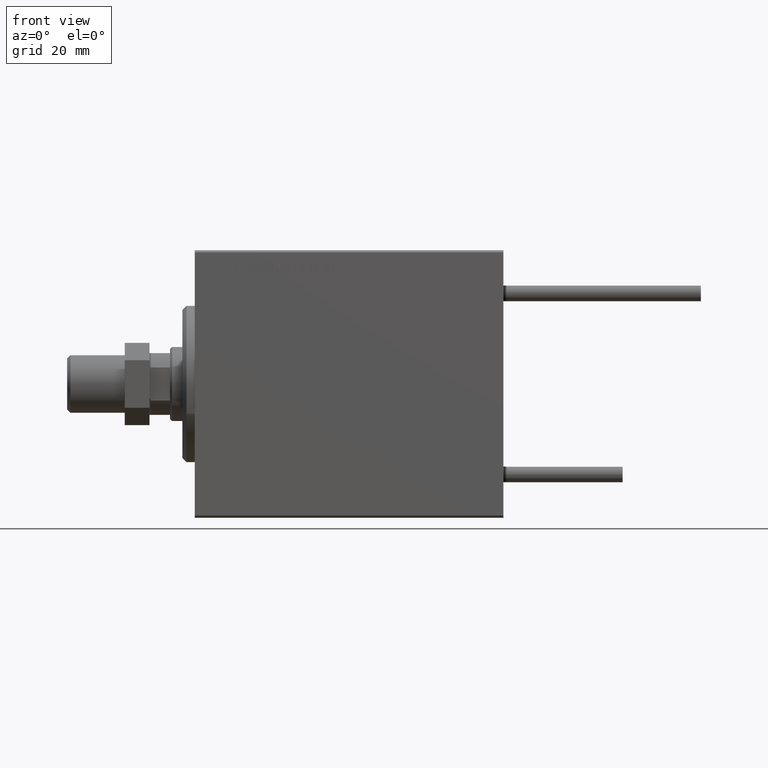
[diagram: clean part render]
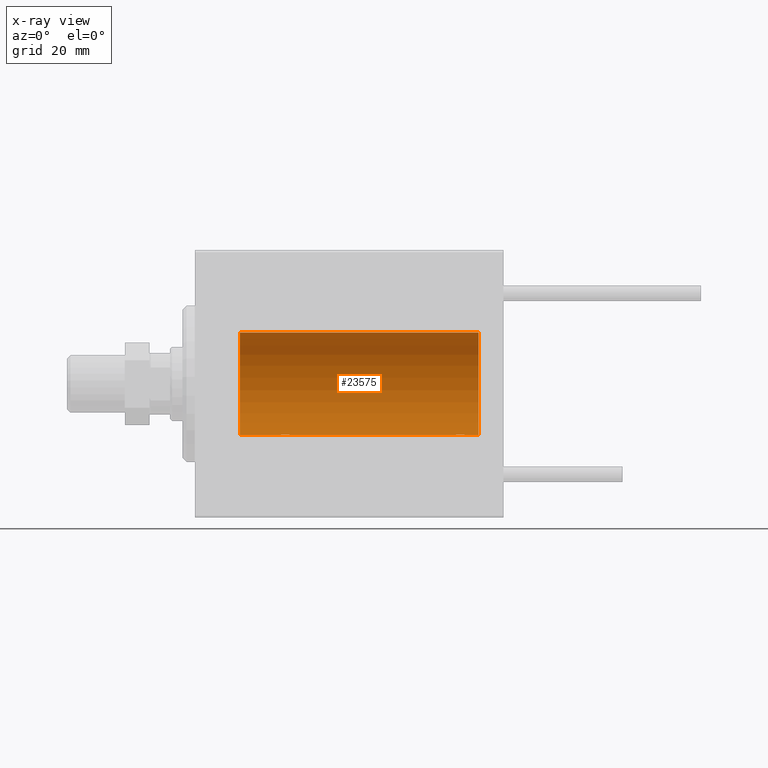
[diagram: x-ray — body ghosted, one internal face saturated and labeled with its STEP entity id]
A machine part, front view, then the same camera in x-ray: the body is ghosted and one INTERNAL B-rep face — a face not visible from any outside direction — is saturated and labeled: STEP entity #23575.
In plain terms, the highlighted cylindrical surface (partial cylindrical patch) has radius 12.5 mm, axis along (-1, -0, -0).
Its self-contained STEP definition (entity closure, byte-faithful):
#1397 = DIRECTION ( 'NONE',  ( -1.000000000000000000, -0.000000000000000000, -0.000000000000000000 ) ) ;
#1400 = CARTESIAN_POINT ( 'NONE',  ( 19.99999999999999645, 0.1323736289504319763, -12.50000000000000000 ) ) ;
#1651 = CARTESIAN_POINT ( 'NONE',  ( 19.99999999999999645, -3.966047509268588167E-15, -12.50000000000000000 ) ) ;
#1780 = CARTESIAN_POINT ( 'NONE',  ( 10.99999999999999645, 0.000000000000000000, 12.50000000000000000 ) ) ;
#1798 = EDGE_CURVE ( 'NONE', #5845, #46331, #8769, .T. ) ;
#1904 = CARTESIAN_POINT ( 'NONE',  ( 23.00335814299181436, 1.734998657226765939, -12.37922086519035325 ) ) ;
#2154 = CARTESIAN_POINT ( 'NONE',  ( 20.77033506126850426, 1.598680238462369951, -12.39873273758732175 ) ) ;
#2255 = CARTESIAN_POINT ( 'NONE',  ( 65.82102833500698580, 1.507394620545635222, -12.40913174964213184 ) ) ;
#2568 = DIRECTION ( 'NONE',  ( -1.000000000000000000, 0.000000000000000000, 0.000000000000000000 ) ) ;
#2633 = LINE ( 'NONE', #49856, #37918 ) ;
#3024 = CARTESIAN_POINT ( 'NONE',  ( 62.76446744561867064, 1.002494658017146767, -12.46021263690097314 ) ) ;
#3170 = AXIS2_PLACEMENT_3D ( 'NONE', #5658, #2568, #36928 ) ;
#3515 = LINE ( 'NONE', #3753, #14626 ) ;
#3753 = CARTESIAN_POINT ( 'NONE',  ( 69.00000000000000000, 1.530808498934191521E-15, -12.50000000000000000 ) ) ;
#4754 = VERTEX_POINT ( 'NONE', #17734 ) ;
#4929 = CARTESIAN_POINT ( 'NONE',  ( 69.00000000000000000, 0.000000000000000000, 0.000000000000000000 ) ) ;
#4956 = EDGE_LOOP ( 'NONE', ( #5746, #13313, #19721, #33254, #34098, #24393, #7995, #40357 ) ) ;
#5444 = DIRECTION ( 'NONE',  ( -1.000000000000000000, -0.000000000000000000, -0.000000000000000000 ) ) ;
#5471 = AXIS2_PLACEMENT_3D ( 'NONE', #44291, #9153, #6318 ) ;
#5658 = CARTESIAN_POINT ( 'NONE',  ( 69.00000000000000000, 0.000000000000000000, 0.000000000000000000 ) ) ;
#5746 = ORIENTED_EDGE ( 'NONE', *, *, #9796, .F. ) ;
#5845 = VERTEX_POINT ( 'NONE', #1780 ) ;
#6007 = CARTESIAN_POINT ( 'NONE',  ( 23.73470742397611843, 1.003863686549172352, -12.46009879577771606 ) ) ;
#6318 = DIRECTION ( 'NONE',  ( 0.000000000000000000, 0.000000000000000000, 1.000000000000000000 ) ) ;
#6622 = CARTESIAN_POINT ( 'NONE',  ( 63.27033506126847584, 1.598680238462355963, -12.39873273758731997 ) ) ;
#6876 = CARTESIAN_POINT ( 'NONE',  ( 66.23470742397610422, 1.003863686549167689, -12.46009879577771606 ) ) ;
#7127 = CARTESIAN_POINT ( 'NONE',  ( 64.62992629360267927, 2.000049200055391996, -12.33895470450623044 ) ) ;
#7995 = ORIENTED_EDGE ( 'NONE', *, *, #39178, .F. ) ;
#8769 = CIRCLE ( 'NONE', #5471, 12.50000000000000000 ) ;
#8850 = CARTESIAN_POINT ( 'NONE',  ( 69.00000000000000000, 1.530808498934191521E-15, -12.50000000000000000 ) ) ;
#9153 = DIRECTION ( 'NONE',  ( -1.000000000000000000, 0.000000000000000000, 0.000000000000000000 ) ) ;
#9360 = EDGE_CURVE ( 'NONE', #21869, #48871, #12970, .T. ) ;
#9451 = CARTESIAN_POINT ( 'NONE',  ( 62.60252270298195754, 0.6455696738844866056, -12.48390768591463562 ) ) ;
#9796 = EDGE_CURVE ( 'NONE', #48871, #40107, #3515, .T. ) ;
#9861 = CARTESIAN_POINT ( 'NONE',  ( 23.58991408680628155, 1.220297236145721609, -12.44076681548080288 ) ) ;
#10362 = CARTESIAN_POINT ( 'NONE',  ( 23.89773031393658087, 0.6448065707253023415, -12.48394649977302073 ) ) ;
#10428 = DIRECTION ( 'NONE',  ( -1.000000000000000000, -0.000000000000000000, -0.000000000000000000 ) ) ;
#12970 = CIRCLE ( 'NONE', #3170, 12.50000000000000000 ) ;
#13194 = CARTESIAN_POINT ( 'NONE',  ( 20.40963319990594016, 1.219754986802279451, -12.44082361696003503 ) ) ;
#13313 = ORIENTED_EDGE ( 'NONE', *, *, #9360, .F. ) ;
#13445 = CARTESIAN_POINT ( 'NONE',  ( 22.26269462454597914, 1.986986967296540119, -12.34109209020652465 ) ) ;
#14275 = CARTESIAN_POINT ( 'NONE',  ( 69.00000000000000000, 1.530808498934191521E-15, -12.50000000000000000 ) ) ;
#14626 = VECTOR ( 'NONE', #30205, 1000.000000000000000 ) ;
#14820 = CARTESIAN_POINT ( 'NONE',  ( 62.99398366327206844, 1.322451657002063241, -12.43019346654085133 ) ) ;
#17053 = CARTESIAN_POINT ( 'NONE',  ( 20.01301208516349206, 0.2624928479599882847, -12.49789934882883458 ) ) ;
#17152 = CARTESIAN_POINT ( 'NONE',  ( 62.50000000000000000, -6.782673595553849353E-15, -12.50000000000000000 ) ) ;
#17299 = CARTESIAN_POINT ( 'NONE',  ( 20.49398366327207910, 1.322451657002076120, -12.43019346654084956 ) ) ;
#17734 = CARTESIAN_POINT ( 'NONE',  ( 62.50000000000000000, -6.782673595553849353E-15, -12.50000000000000000 ) ) ;
#17910 = CARTESIAN_POINT ( 'NONE',  ( 66.48690384766254624, 0.2633501011236129563, -12.49788564268283686 ) ) ;
#17966 = CARTESIAN_POINT ( 'NONE',  ( 69.00000000000000000, 1.530808498934191521E-15, -12.50000000000000000 ) ) ;
#18065 = CARTESIAN_POINT ( 'NONE',  ( 23.79742491916155700, 0.8868029758979399935, -12.46909283808506430 ) ) ;
#18672 = CARTESIAN_POINT ( 'NONE',  ( 64.23788193668377744, 1.999901172190670762, -12.33897869807161740 ) ) ;
#19236 = CARTESIAN_POINT ( 'NONE',  ( 69.00000000000000000, 0.000000000000000000, 12.50000000000000000 ) ) ;
#19521 = AXIS2_PLACEMENT_3D ( 'NONE', #4929, #5444, #39814 ) ;
#19721 = ORIENTED_EDGE ( 'NONE', *, *, #38130, .T. ) ;
#20294 = B_SPLINE_CURVE_WITH_KNOTS ( 'NONE', 3,
 ( #17152, #32787, #48446, #44589, #9451, #25076, #3024, #42255, #14820, #6622, #33546, #37387, #18672, #7127, #30464, #22270, #49218, #37898, #34318, #41755, #2255, #49994, #25842, #6876, #22520, #46360, #38414, #17910, #29949, #50248 ),
 .UNSPECIFIED., .F., .F.,
 ( 4, 2, 2, 2, 2, 2, 2, 2, 2, 2, 2, 2, 2, 2, 4 ),
 ( 1.231070527911204700E-19, 0.0003914362731607716147, 0.0007828725463215431210, 0.001174308819482314898, 0.001565745092643086242, 0.002348617638964600306, 0.003131490185286114371, 0.003522926458446871620, 0.003914362731607628001, 0.004305799004768385251, 0.004697235277929141632, 0.005088671551089898881, 0.005480107824250656130, 0.005871544097411412512, 0.006262980370572170628 ),
 .UNSPECIFIED. ) ;
#20310 = VERTEX_POINT ( 'NONE', #46276 ) ;
#21403 = CARTESIAN_POINT ( 'NONE',  ( 22.64415233770293412, 1.897967064543090165, -12.35517291625592051 ) ) ;
#21869 = VERTEX_POINT ( 'NONE', #19236 ) ;
#22270 = CARTESIAN_POINT ( 'NONE',  ( 65.01937350851554243, 1.935814255713563359, -12.34922241902462758 ) ) ;
#22520 = CARTESIAN_POINT ( 'NONE',  ( 66.29742491916155700, 0.8868029758979355526, -12.46909283808506430 ) ) ;
#23575 = ADVANCED_FACE ( 'NONE', ( #40573 ), #24170, .F. ) ;
#24170 = CYLINDRICAL_SURFACE ( 'NONE', #19521, 12.50000000000000000 ) ;
#24393 = ORIENTED_EDGE ( 'NONE', *, *, #42636, .T. ) ;
#25076 = CARTESIAN_POINT ( 'NONE',  ( 62.70300788371383049, 0.8876934327478079867, -12.46903010196599659 ) ) ;
#25842 = CARTESIAN_POINT ( 'NONE',  ( 66.08991408680628865, 1.220297236145716724, -12.44076681548080465 ) ) ;
#26003 = CARTESIAN_POINT ( 'NONE',  ( 23.98690384766256400, 0.2633501011236120681, -12.49788564268284041 ) ) ;
#29088 = CARTESIAN_POINT ( 'NONE',  ( 22.51937350851555308, 1.935814255713574905, -12.34922241902463114 ) ) ;
#29345 = CARTESIAN_POINT ( 'NONE',  ( 20.99316879552500481, 1.747608771958139906, -12.37764291807175354 ) ) ;
#29949 = CARTESIAN_POINT ( 'NONE',  ( 66.50000000000000000, 0.1306394121199378755, -12.50000000000000178 ) ) ;
#30205 = DIRECTION ( 'NONE',  ( -1.000000000000000000, -0.000000000000000000, -0.000000000000000000 ) ) ;
#30328 = DIRECTION ( 'NONE',  ( -1.000000000000000000, -0.000000000000000000, -0.000000000000000000 ) ) ;
#30398 = EDGE_CURVE ( 'NONE', #39963, #46331, #36525, .T. ) ;
#30464 = CARTESIAN_POINT ( 'NONE',  ( 64.76269462454600045, 1.986986967296529905, -12.34109209020653175 ) ) ;
#31081 = VECTOR ( 'NONE', #1397, 1000.000000000000000 ) ;
#32687 = CARTESIAN_POINT ( 'NONE',  ( 20.10252270298193622, 0.6455696738844897142, -12.48390768591463207 ) ) ;
#32787 = CARTESIAN_POINT ( 'NONE',  ( 62.50000000000001421, 0.1323736289504287289, -12.50000000000000533 ) ) ;
#32936 = CARTESIAN_POINT ( 'NONE',  ( 21.73788193668374902, 1.999901172190678533, -12.33897869807161385 ) ) ;
#33188 = CARTESIAN_POINT ( 'NONE',  ( 23.32102833500698225, 1.507394620545640773, -12.40913174964213184 ) ) ;
#33254 = ORIENTED_EDGE ( 'NONE', *, *, #1798, .T. ) ;
#33546 = CARTESIAN_POINT ( 'NONE',  ( 63.49316879552500836, 1.747608771958128360, -12.37764291807175532 ) ) ;
#33700 = CARTESIAN_POINT ( 'NONE',  ( 23.93561774521849728, 0.5201193324741352209, -12.48983485452574982 ) ) ;
#34098 = ORIENTED_EDGE ( 'NONE', *, *, #30398, .F. ) ;
#34318 = CARTESIAN_POINT ( 'NONE',  ( 65.50335814299182857, 1.734998657226759278, -12.37922086519035858 ) ) ;
#35349 = VECTOR ( 'NONE', #10428, 1000.000000000000000 ) ;
#36525 = LINE ( 'NONE', #8850, #31081 ) ;
#36928 = DIRECTION ( 'NONE',  ( 0.000000000000000000, 0.000000000000000000, 1.000000000000000000 ) ) ;
#37033 = CARTESIAN_POINT ( 'NONE',  ( 22.88656313533016373, 1.797558627508998086, -12.37018026341338839 ) ) ;
#37387 = CARTESIAN_POINT ( 'NONE',  ( 63.97436412829508612, 1.947190906025034751, -12.34781876294798586 ) ) ;
#37547 = CARTESIAN_POINT ( 'NONE',  ( 24.00000000000000711, 0.1306394121199392910, -12.50000000000000533 ) ) ;
#37898 = CARTESIAN_POINT ( 'NONE',  ( 65.38656313533014952, 1.797558627508990758, -12.37018026341338484 ) ) ;
#37918 = VECTOR ( 'NONE', #30328, 1000.000000000000000 ) ;
#38130 = EDGE_CURVE ( 'NONE', #21869, #5845, #2633, .T. ) ;
#38414 = CARTESIAN_POINT ( 'NONE',  ( 66.43561774521847951, 0.5201193324741335555, -12.48983485452575160 ) ) ;
#38503 = CARTESIAN_POINT ( 'NONE',  ( 19.99999999999999645, -3.966047509268588167E-15, -12.50000000000000000 ) ) ;
#39178 = EDGE_CURVE ( 'NONE', #4754, #20310, #49439, .T. ) ;
#39507 = CARTESIAN_POINT ( 'NONE',  ( 66.50000000000000000, 1.530808426270318106E-15, -12.50000000000000000 ) ) ;
#39814 = DIRECTION ( 'NONE',  ( 0.000000000000000000, 0.000000000000000000, 1.000000000000000000 ) ) ;
#39963 = VERTEX_POINT ( 'NONE', #38503 ) ;
#40107 = VERTEX_POINT ( 'NONE', #39507 ) ;
#40357 = ORIENTED_EDGE ( 'NONE', *, *, #50610, .T. ) ;
#40573 = FACE_OUTER_BOUND ( 'NONE', #4956, .T. ) ;
#40635 = CARTESIAN_POINT ( 'NONE',  ( 20.06395648222636652, 0.5184196815546032733, -12.48990118705761532 ) ) ;
#41755 = CARTESIAN_POINT ( 'NONE',  ( 65.71980790594581379, 1.590288205413969314, -12.39864157855465088 ) ) ;
#42255 = CARTESIAN_POINT ( 'NONE',  ( 62.90963319990593305, 1.219754986802269237, -12.44082361696003147 ) ) ;
#42636 = EDGE_CURVE ( 'NONE', #39963, #20310, #44425, .T. ) ;
#44291 = CARTESIAN_POINT ( 'NONE',  ( 10.99999999999999645, 0.000000000000000000, 0.000000000000000000 ) ) ;
#44425 = B_SPLINE_CURVE_WITH_KNOTS ( 'NONE', 3,
 ( #1651, #1400, #17053, #40635, #32687, #48350, #44741, #13194, #17299, #2154, #29345, #44492, #32936, #48600, #13445, #29088, #21403, #37033, #1904, #45001, #33188, #48858, #9861, #6007, #18065, #10362, #33700, #26003, #37547, #49374 ),
 .UNSPECIFIED., .F., .F.,
 ( 4, 2, 2, 2, 2, 2, 2, 2, 2, 2, 2, 2, 2, 2, 4 ),
 ( 3.611342868676865251E-19, 0.0003914362731607586585, 0.0007828725463215168833, 0.001174308819482275217, 0.001565745092643033550, 0.002348617638964549999, 0.003131490185286066666, 0.003522926458446830420, 0.003914362731607594174, 0.004305799004768357495, 0.004697235277929121683, 0.005088671551089885003, 0.005480107824250649191, 0.005871544097411412512, 0.006262980370572176700 ),
 .UNSPECIFIED. ) ;
#44492 = CARTESIAN_POINT ( 'NONE',  ( 21.47436412829510033, 1.947190906025044077, -12.34781876294798053 ) ) ;
#44589 = CARTESIAN_POINT ( 'NONE',  ( 62.56395648222637362, 0.5184196815545989434, -12.48990118705761176 ) ) ;
#44741 = CARTESIAN_POINT ( 'NONE',  ( 20.26446744561862801, 1.002494658017155871, -12.46021263690096958 ) ) ;
#45001 = CARTESIAN_POINT ( 'NONE',  ( 23.21980790594580313, 1.590288205413975309, -12.39864157855465088 ) ) ;
#46276 = CARTESIAN_POINT ( 'NONE',  ( 24.00000000000000000, 1.530808426277417854E-15, -12.50000000000000000 ) ) ;
#46331 = VERTEX_POINT ( 'NONE', #48772 ) ;
#46360 = CARTESIAN_POINT ( 'NONE',  ( 66.39773031393660574, 0.6448065707252987888, -12.48394649977302251 ) ) ;
#48350 = CARTESIAN_POINT ( 'NONE',  ( 20.20300788371381273, 0.8876934327478117615, -12.46903010196599304 ) ) ;
#48446 = CARTESIAN_POINT ( 'NONE',  ( 62.51301208516349561, 0.2624928479599840658, -12.49789934882883458 ) ) ;
#48600 = CARTESIAN_POINT ( 'NONE',  ( 22.12992629360264729, 2.000049200055402210, -12.33895470450623044 ) ) ;
#48772 = CARTESIAN_POINT ( 'NONE',  ( 10.99999999999999645, 1.530808498934191521E-15, -12.50000000000000000 ) ) ;
#48858 = CARTESIAN_POINT ( 'NONE',  ( 23.50733550364322255, 1.321095788880538136, -12.43034574091277911 ) ) ;
#48871 = VERTEX_POINT ( 'NONE', #17966 ) ;
#49218 = CARTESIAN_POINT ( 'NONE',  ( 65.14415233770293412, 1.897967064543081950, -12.35517291625592051 ) ) ;
#49374 = CARTESIAN_POINT ( 'NONE',  ( 24.00000000000000000, 1.530808426277417854E-15, -12.50000000000000000 ) ) ;
#49439 = LINE ( 'NONE', #14275, #35349 ) ;
#49856 = CARTESIAN_POINT ( 'NONE',  ( 69.00000000000000000, 0.000000000000000000, 12.50000000000000000 ) ) ;
#49994 = CARTESIAN_POINT ( 'NONE',  ( 66.00733550364320479, 1.321095788880533695, -12.43034574091277911 ) ) ;
#50248 = CARTESIAN_POINT ( 'NONE',  ( 66.50000000000000000, 1.530808426270318106E-15, -12.50000000000000000 ) ) ;
#50610 = EDGE_CURVE ( 'NONE', #4754, #40107, #20294, .T. ) ;